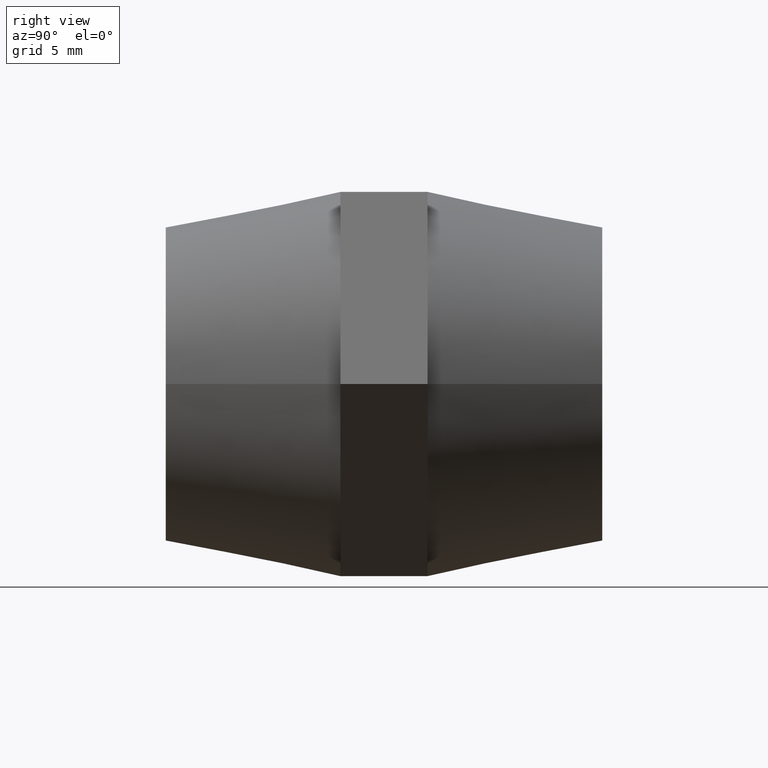
[diagram: clean part render]
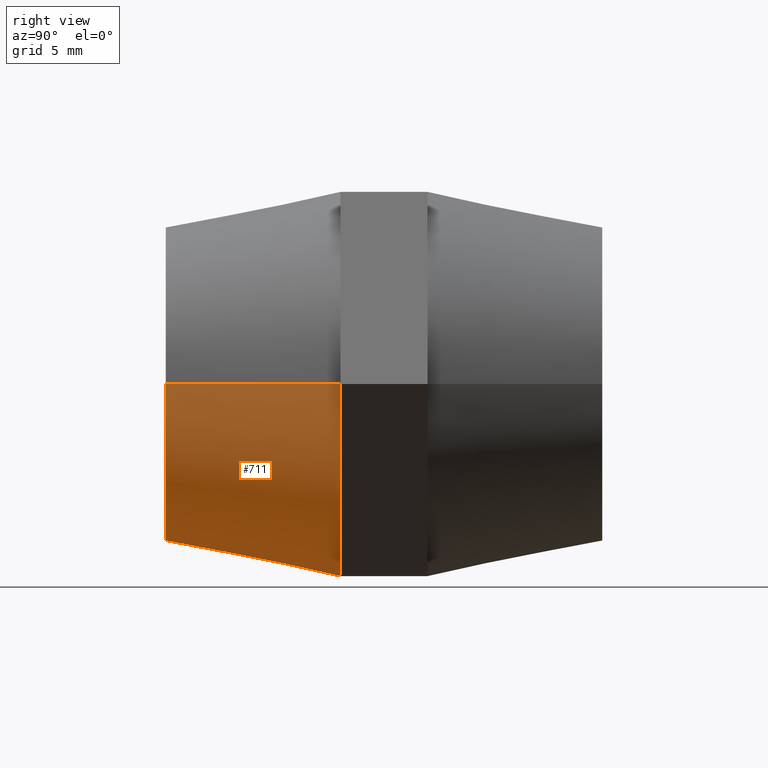
[diagram: same view with one face highlighted and labeled with its STEP entity id]
A machine part, right view. The second image highlights one B-rep face of the part: STEP entity #711.
In plain terms, the highlighted conical surface has half-angle 11.31 deg.
Its self-contained STEP definition (entity closure, byte-faithful):
#193 = DIRECTION ( 'NONE',  ( -1.224646799147352000E-016, 1.000000000000000000, 0.0000000000000000000 ) ) ;
#238 = VERTEX_POINT ( 'NONE', #1309 ) ;
#286 = AXIS2_PLACEMENT_3D ( 'NONE', #3643, #2481, #763 ) ;
#339 = VERTEX_POINT ( 'NONE', #2176 ) ;
#384 = ORIENTED_EDGE ( 'NONE', *, *, #2738, .F. ) ;
#392 = VECTOR ( 'NONE', #716, 1000.000000000000100 ) ;
#485 = VERTEX_POINT ( 'NONE', #2240 ) ;
#642 = AXIS2_PLACEMENT_3D ( 'NONE', #2544, #2878, #788 ) ;
#711 = ADVANCED_FACE ( 'NONE', ( #3412 ), #1032, .T. ) ;
#716 = DIRECTION ( 'NONE',  ( -0.1961161351381841600, 0.9805806756909201100, 0.0000000000000000000 ) ) ;
#763 = DIRECTION ( 'NONE',  ( 0.0000000000000000000, 0.0000000000000000000, 1.000000000000000000 ) ) ;
#772 = CARTESIAN_POINT ( 'NONE',  ( 11.00000000000000200, -2.499999999999998700, 1.347111479062088400E-015 ) ) ;
#788 = DIRECTION ( 'NONE',  ( 0.0000000000000000000, 0.0000000000000000000, 1.000000000000000000 ) ) ;
#935 = CIRCLE ( 'NONE', #286, 11.00000000000000000 ) ;
#1004 = CARTESIAN_POINT ( 'NONE',  ( -8.999999999999996400, -12.50000000000000200, 0.0000000000000000000 ) ) ;
#1025 = CARTESIAN_POINT ( 'NONE',  ( 3.061616997868384600E-015, -12.50000000000000000, 0.0000000000000000000 ) ) ;
#1032 = CONICAL_SURFACE ( 'NONE', #3669, 11.00000000000000000, 0.1973955598498807800 ) ;
#1038 = CARTESIAN_POINT ( 'NONE',  ( 1.836970198721030000E-015, -2.500000000000000000, -11.00000000000000000 ) ) ;
#1052 = DIRECTION ( 'NONE',  ( -1.000000000000000000, -1.182766006347823100E-016, 0.0000000000000000000 ) ) ;
#1067 = CARTESIAN_POINT ( 'NONE',  ( 1.836970198721030000E-015, -2.500000000000000000, 0.0000000000000000000 ) ) ;
#1070 = DIRECTION ( 'NONE',  ( 0.1961161351381839600, 0.9805806756909202200, 2.401729971581268900E-017 ) ) ;
#1141 = VERTEX_POINT ( 'NONE', #2385 ) ;
#1242 = EDGE_CURVE ( 'NONE', #238, #339, #1350, .T. ) ;
#1309 = CARTESIAN_POINT ( 'NONE',  ( -9.526279441628821200, -2.500000000000000000, -5.500000000000000000 ) ) ;
#1350 = CIRCLE ( 'NONE', #1979, 11.00000000000000000 ) ;
#1554 = ORIENTED_EDGE ( 'NONE', *, *, #2139, .T. ) ;
#1589 = ORIENTED_EDGE ( 'NONE', *, *, #3325, .F. ) ;
#1749 = EDGE_LOOP ( 'NONE', ( #384, #1554, #3621, #3186, #2722, #1589, #1843 ) ) ;
#1831 = CARTESIAN_POINT ( 'NONE',  ( 1.836970198721030000E-015, -2.500000000000000000, 2.694222958124174500E-016 ) ) ;
#1843 = ORIENTED_EDGE ( 'NONE', *, *, #2519, .F. ) ;
#1856 = CARTESIAN_POINT ( 'NONE',  ( 1.836970198721030000E-015, -2.500000000000000000, 2.694222958124174500E-016 ) ) ;
#1883 = DIRECTION ( 'NONE',  ( 0.0000000000000000000, 0.0000000000000000000, 1.000000000000000000 ) ) ;
#1979 = AXIS2_PLACEMENT_3D ( 'NONE', #1831, #2724, #3297 ) ;
#2013 = LINE ( 'NONE', #772, #3422 ) ;
#2113 = VERTEX_POINT ( 'NONE', #2430 ) ;
#2139 = EDGE_CURVE ( 'NONE', #485, #2435, #3793, .T. ) ;
#2163 = VERTEX_POINT ( 'NONE', #1038 ) ;
#2176 = CARTESIAN_POINT ( 'NONE',  ( -10.99999999999999800, -2.500000000000000000, 0.0000000000000000000 ) ) ;
#2225 = DIRECTION ( 'NONE',  ( -1.000000000000000000, -1.927470528863119000E-016, 0.0000000000000000000 ) ) ;
#2240 = CARTESIAN_POINT ( 'NONE',  ( 9.000000000000003600, -12.49999999999999800, 1.224646799147353300E-015 ) ) ;
#2385 = CARTESIAN_POINT ( 'NONE',  ( 9.526279441628821200, -2.500000000000000000, -5.500000000000000000 ) ) ;
#2430 = CARTESIAN_POINT ( 'NONE',  ( 11.00000000000000200, -2.500000000000000000, 1.347111479062088400E-015 ) ) ;
#2435 = VERTEX_POINT ( 'NONE', #1004 ) ;
#2481 = DIRECTION ( 'NONE',  ( 0.0000000000000000000, 1.000000000000000000, 0.0000000000000000000 ) ) ;
#2492 = CARTESIAN_POINT ( 'NONE',  ( -10.99999999999999800, -2.500000000000001300, 0.0000000000000000000 ) ) ;
#2501 = DIRECTION ( 'NONE',  ( -1.224646799147352000E-016, 1.000000000000000000, 0.0000000000000000000 ) ) ;
#2519 = EDGE_CURVE ( 'NONE', #2113, #1141, #3107, .T. ) ;
#2544 = CARTESIAN_POINT ( 'NONE',  ( 1.836970198721030000E-015, -2.500000000000000000, 2.694222958124174500E-016 ) ) ;
#2558 = LINE ( 'NONE', #2492, #392 ) ;
#2722 = ORIENTED_EDGE ( 'NONE', *, *, #3176, .F. ) ;
#2724 = DIRECTION ( 'NONE',  ( 0.0000000000000000000, 1.000000000000000000, 0.0000000000000000000 ) ) ;
#2738 = EDGE_CURVE ( 'NONE', #485, #2113, #2013, .T. ) ;
#2878 = DIRECTION ( 'NONE',  ( 0.0000000000000000000, 1.000000000000000000, 0.0000000000000000000 ) ) ;
#3056 = DIRECTION ( 'NONE',  ( 0.0000000000000000000, 1.000000000000000000, 0.0000000000000000000 ) ) ;
#3099 = AXIS2_PLACEMENT_3D ( 'NONE', #1856, #3056, #1883 ) ;
#3107 = CIRCLE ( 'NONE', #642, 11.00000000000000000 ) ;
#3176 = EDGE_CURVE ( 'NONE', #2163, #238, #3287, .T. ) ;
#3186 = ORIENTED_EDGE ( 'NONE', *, *, #1242, .F. ) ;
#3269 = EDGE_CURVE ( 'NONE', #2435, #339, #2558, .T. ) ;
#3273 = AXIS2_PLACEMENT_3D ( 'NONE', #1025, #2501, #2225 ) ;
#3287 = CIRCLE ( 'NONE', #3099, 11.00000000000000000 ) ;
#3297 = DIRECTION ( 'NONE',  ( 0.0000000000000000000, 0.0000000000000000000, 1.000000000000000000 ) ) ;
#3325 = EDGE_CURVE ( 'NONE', #1141, #2163, #935, .T. ) ;
#3412 = FACE_OUTER_BOUND ( 'NONE', #1749, .T. ) ;
#3422 = VECTOR ( 'NONE', #1070, 1000.000000000000000 ) ;
#3621 = ORIENTED_EDGE ( 'NONE', *, *, #3269, .T. ) ;
#3643 = CARTESIAN_POINT ( 'NONE',  ( 1.836970198721030000E-015, -2.500000000000000000, 2.694222958124174500E-016 ) ) ;
#3669 = AXIS2_PLACEMENT_3D ( 'NONE', #1067, #193, #1052 ) ;
#3793 = CIRCLE ( 'NONE', #3273, 9.000000000000000000 ) ;